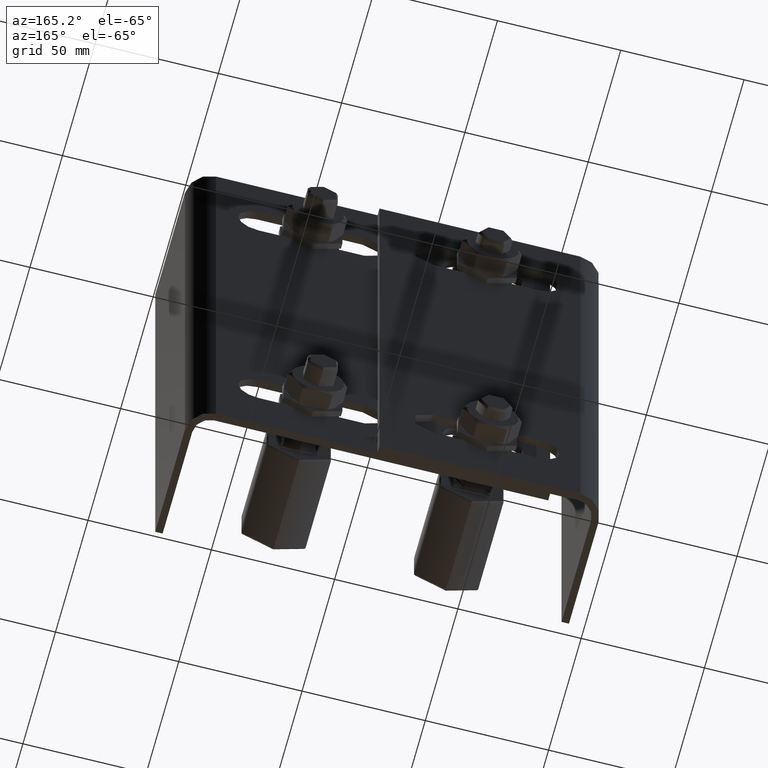
[diagram: clean part render]
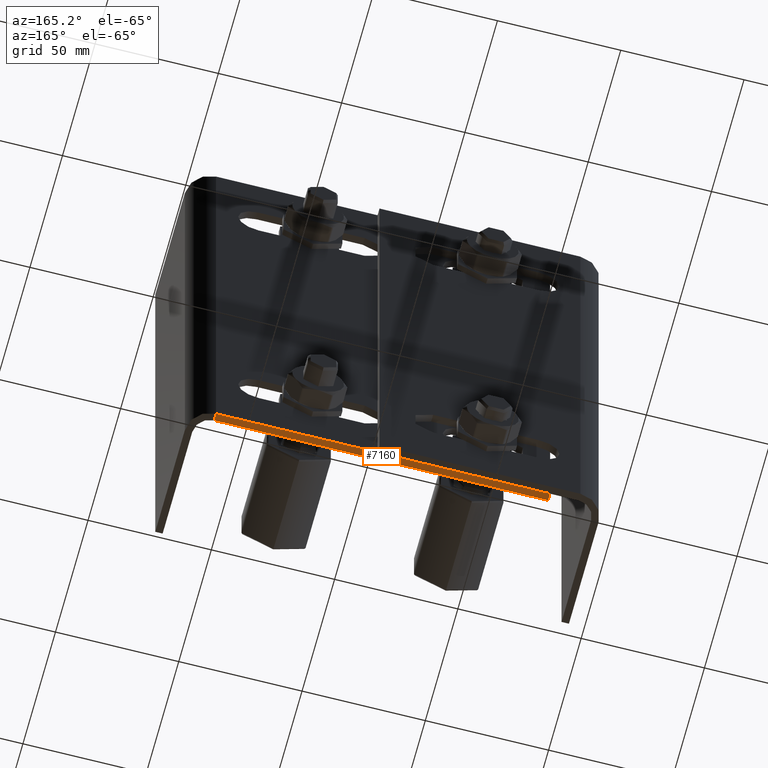
[diagram: same view with one face highlighted and labeled with its STEP entity id]
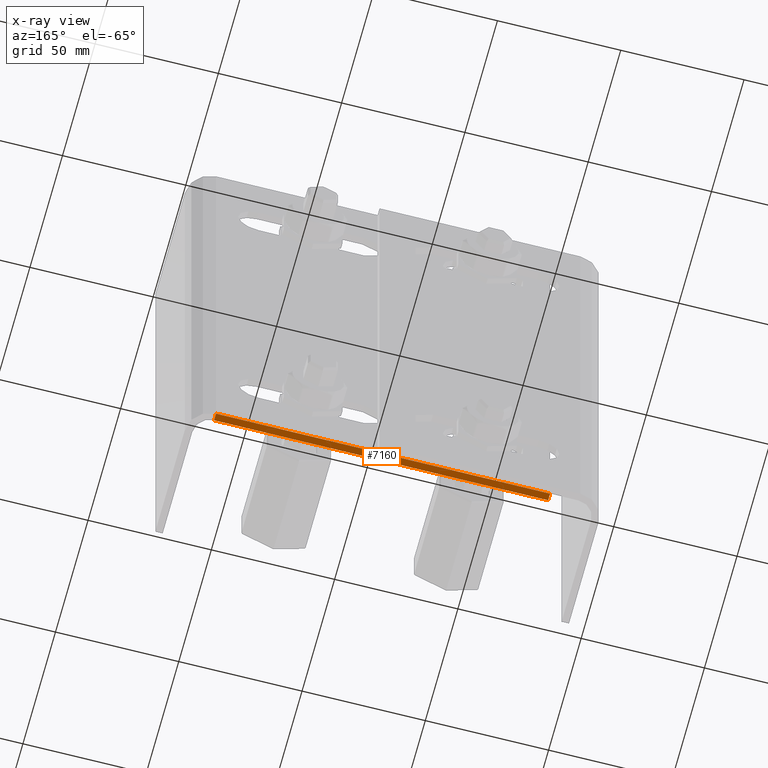
[diagram: x-ray of the same camera — body ghosted, the highlighted face saturated]
A machine part, auxiliary view. The second image highlights one B-rep face of the part: STEP entity #7160.
The next image is the same camera in x-ray: the body ghosted, the highlighted face saturated — about 0% of this face is hidden behind the body in this view.
In plain terms, the highlighted planar face has unit normal (-0, 0, -1).
Its self-contained STEP definition (entity closure, byte-faithful):
#580 = LINE ( 'NONE', #17938, #13013 ) ;
#591 = VECTOR ( 'NONE', #18887, 1000.000000000000000 ) ;
#739 = EDGE_CURVE ( 'NONE', #19951, #15301, #11781, .T. ) ;
#2634 = EDGE_LOOP ( 'NONE', ( #17639, #11686, #17659, #8557 ) ) ;
#3893 = CARTESIAN_POINT ( 'NONE',  ( 72.75000000000000000, 52.49999999999999289, 110.0000000000000000 ) ) ;
#5113 = VERTEX_POINT ( 'NONE', #15082 ) ;
#5276 = PLANE ( 'NONE',  #12851 ) ;
#6931 = EDGE_CURVE ( 'NONE', #19951, #18912, #19512, .T. ) ;
#7100 = LINE ( 'NONE', #3893, #20857 ) ;
#7160 = ADVANCED_FACE ( 'NONE', ( #11443 ), #5276, .T. ) ;
#7175 = CARTESIAN_POINT ( 'NONE',  ( 72.75000000000000000, 55.49999999999999289, 110.0000000000000000 ) ) ;
#7460 = CARTESIAN_POINT ( 'NONE',  ( -62.75000000000001421, 55.49999999999999289, 110.0000000000000000 ) ) ;
#8557 = ORIENTED_EDGE ( 'NONE', *, *, #739, .F. ) ;
#9346 = DIRECTION ( 'NONE',  ( 5.176450775539412942E-31, -1.000000000000000000, 0.000000000000000000 ) ) ;
#9920 = CARTESIAN_POINT ( 'NONE',  ( -69.74999999999998579, 45.50000000000000000, 110.0000000000000000 ) ) ;
#10325 = DIRECTION ( 'NONE',  ( 1.000000000000000000, -5.176450775539412942E-31, 0.000000000000000000 ) ) ;
#11443 = FACE_OUTER_BOUND ( 'NONE', #2634, .T. ) ;
#11686 = ORIENTED_EDGE ( 'NONE', *, *, #21419, .T. ) ;
#11781 = LINE ( 'NONE', #7175, #20899 ) ;
#12340 = EDGE_CURVE ( 'NONE', #15301, #5113, #7100, .T. ) ;
#12851 = AXIS2_PLACEMENT_3D ( 'NONE', #9920, #13804, #10325 ) ;
#13013 = VECTOR ( 'NONE', #14703, 1000.000000000000000 ) ;
#13804 = DIRECTION ( 'NONE',  ( 0.000000000000000000, 0.000000000000000000, 1.000000000000000000 ) ) ;
#14703 = DIRECTION ( 'NONE',  ( 5.176450775539412942E-31, -1.000000000000000000, 0.000000000000000000 ) ) ;
#15082 = CARTESIAN_POINT ( 'NONE',  ( -62.75000000000001421, 52.49999999999999289, 110.0000000000000000 ) ) ;
#15301 = VERTEX_POINT ( 'NONE', #16502 ) ;
#15478 = DIRECTION ( 'NONE',  ( -1.000000000000000000, 5.176450775539412942E-31, -0.000000000000000000 ) ) ;
#16502 = CARTESIAN_POINT ( 'NONE',  ( 72.75000000000000000, 52.49999999999999289, 110.0000000000000000 ) ) ;
#17468 = CARTESIAN_POINT ( 'NONE',  ( 72.75000000000000000, 55.49999999999999289, 110.0000000000000000 ) ) ;
#17639 = ORIENTED_EDGE ( 'NONE', *, *, #6931, .T. ) ;
#17659 = ORIENTED_EDGE ( 'NONE', *, *, #12340, .F. ) ;
#17938 = CARTESIAN_POINT ( 'NONE',  ( -62.75000000000001421, 55.49999999999999289, 110.0000000000000000 ) ) ;
#18887 = DIRECTION ( 'NONE',  ( -1.000000000000000000, 5.176450775539412942E-31, 0.000000000000000000 ) ) ;
#18912 = VERTEX_POINT ( 'NONE', #7460 ) ;
#19512 = LINE ( 'NONE', #20575, #591 ) ;
#19951 = VERTEX_POINT ( 'NONE', #17468 ) ;
#20575 = CARTESIAN_POINT ( 'NONE',  ( 72.75000000000000000, 55.49999999999999289, 110.0000000000000000 ) ) ;
#20857 = VECTOR ( 'NONE', #15478, 1000.000000000000000 ) ;
#20899 = VECTOR ( 'NONE', #9346, 1000.000000000000000 ) ;
#21419 = EDGE_CURVE ( 'NONE', #18912, #5113, #580, .T. ) ;